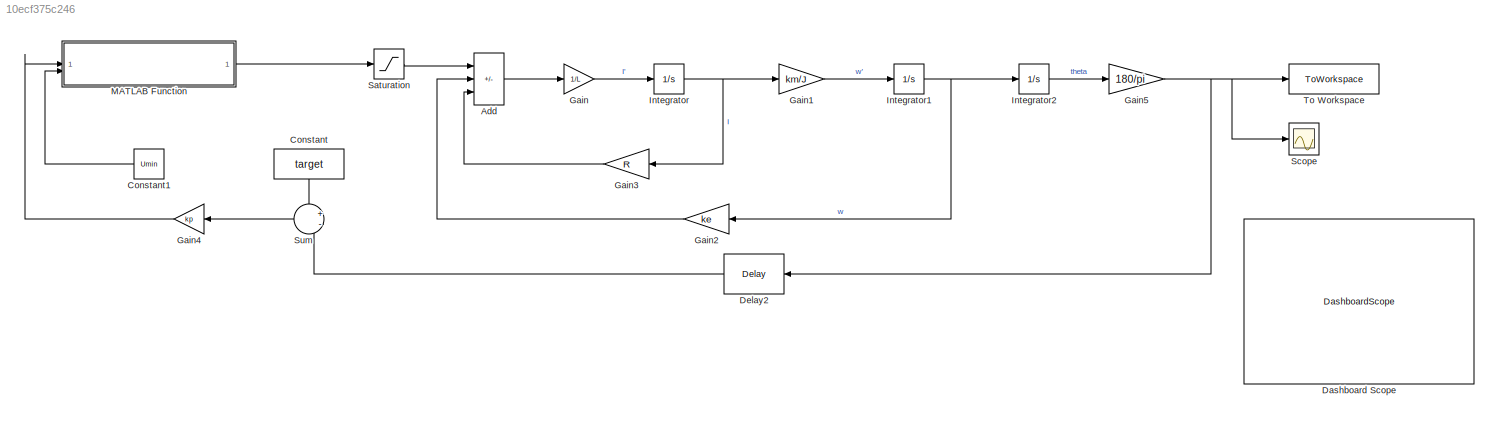
MODEL slx_10ecf375c246
KIND model
CONFIG AbsTol = auto
CONFIG EnableMultiTasking = off
CONFIG FixedStep = auto
CONFIG MaxStep = auto
CONFIG MinStep = auto
CONFIG RelTol = 1e-3
CONFIG SampleTimeConstraint = Unconstrained
CONFIG SolverName = VariableStepAuto
CONFIG StartTime = 0.0
CONFIG StopTime = 10
BLOCK [Sum] Add
  IconShape = rectangular
  Inputs = +--
BLOCK [Constant] Constant
  NameLocation = left
  Value = target
BLOCK [Constant] Constant1
  NameLocation = top
  Value = Umin
BLOCK [DashboardScope] Dashboard Scope
BLOCK [Delay] Delay2
  DelayLength = 0
  InitialCondition = 0
  InputPortMap = u0
  SampleTime = 50e-6
BLOCK [Gain] Gain
  Gain = 1/L
BLOCK [Gain] Gain1
  Gain = km/J
BLOCK [Gain] Gain2
  Gain = ke
  NameLocation = top
BLOCK [Gain] Gain3
  Gain = R
  NameLocation = top
BLOCK [Gain] Gain4
  Gain = kp
  NameLocation = top
BLOCK [Gain] Gain5
  Gain = 180/pi
BLOCK [Integrator] Integrator
BLOCK [Integrator] Integrator1
BLOCK [Integrator] Integrator2
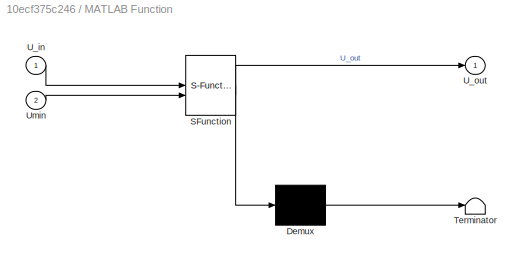
BLOCK [SubSystem] MATLAB Function
  ErrorFcn = Stateflow.Translate.translate
  LibrarySourceBlock = simulink/User-Defined\nFunctions/MATLAB Function
  PermitHierarchicalResolution = ExplicitOnly
  SFBlockType = MATLAB Function
  TreatAsAtomicUnit = on
BLOCK [Demux] MATLAB Function/ Demux 
  Outputs = 1
BLOCK [S-Function] MATLAB Function/ SFunction 
  EnableBusSupport = on
  FunctionName = sf_sfun
  PortCounts = [2 2]
  SFcnIsStateOwnerBlock = off
  SFunctionDeploymentMode = off
  Tag = Stateflow S-Function 2
BLOCK [Terminator] MATLAB Function/ Terminator 
BLOCK [Inport] MATLAB Function/U_in
BLOCK [Outport] MATLAB Function/U_out
BLOCK [Inport] MATLAB Function/Umin
  Port = 2
BLOCK [Saturate] Saturation
  LowerLimit = -8.05
  UpperLimit = 8.05
BLOCK [Scope] Scope
  Floating = off
  NumInputPorts = 1
  ScopeSpecificationString = Simulink.scopes.TimeScopeBlockCfg('CurrentConfiguration', extmgr.ConfigurationSet(extmgr.Configuration('Core','General UI',true),extmgr.Configuration('Core','Source UI',true),extmgr.Configuration('Sources','WiredSimulink',true,'DataLogging',true,'DataLoggingVariableName','simulinkP','DataLoggingSaveFormat','Array'),extmgr.Configuration('Visuals','Time Domain',true,'SerializedDisplays',{struct('Min...<+1505ch>
BLOCK [Sum] Sum
  Inputs = +-
  NameLocation = top
BLOCK [ToWorkspace] To Workspace
  FixptAsFi = on
  MaxDataPoints = inf
  SampleTime = -1
  SaveFormat = Timeseries
  VariableName = thetaP
LINE Add:1 -> Gain:1
LINE Constant1:1 -> MATLAB Function:2
LINE Constant:1 -> Sum:1
LINE Delay2:1 -> Sum:2
LINE Gain1:1 -> Integrator1:1
LINE Gain2:1 -> Add:2
LINE Gain3:1 -> Add:3
LINE Gain4:1 -> MATLAB Function:1
NET Gain5:1 -> Delay2:1, Scope:1, To Workspace:1
LINE Gain:1 -> Integrator:1
NET Integrator1:1 -> Gain2:1, Integrator2:1
LINE Integrator2:1 -> Gain5:1
NET Integrator:1 -> Gain1:1, Gain3:1
LINE MATLAB Function:1 -> Saturation:1
LINE Saturation:1 -> Add:1
LINE Sum:1 -> Gain4:1
note: NET lines group one-source signal fan-out (src -> all destinations, sorted); 1:1 wires keep LINE
CHART MATLAB Function states=1 transitions=1
  STATE_LABEL 'eML_blk_kernel()'
  STATE_LABEL 'SCRIPT:\nfunction U_out = steady_state_error(U_in, Umin)\n    if (abs(U_in) < Umin)\n        U_out = 0;\n    else\n        U_out = U_in;\n    end\n\nend\n    '
CHART  states=0 transitions=0
